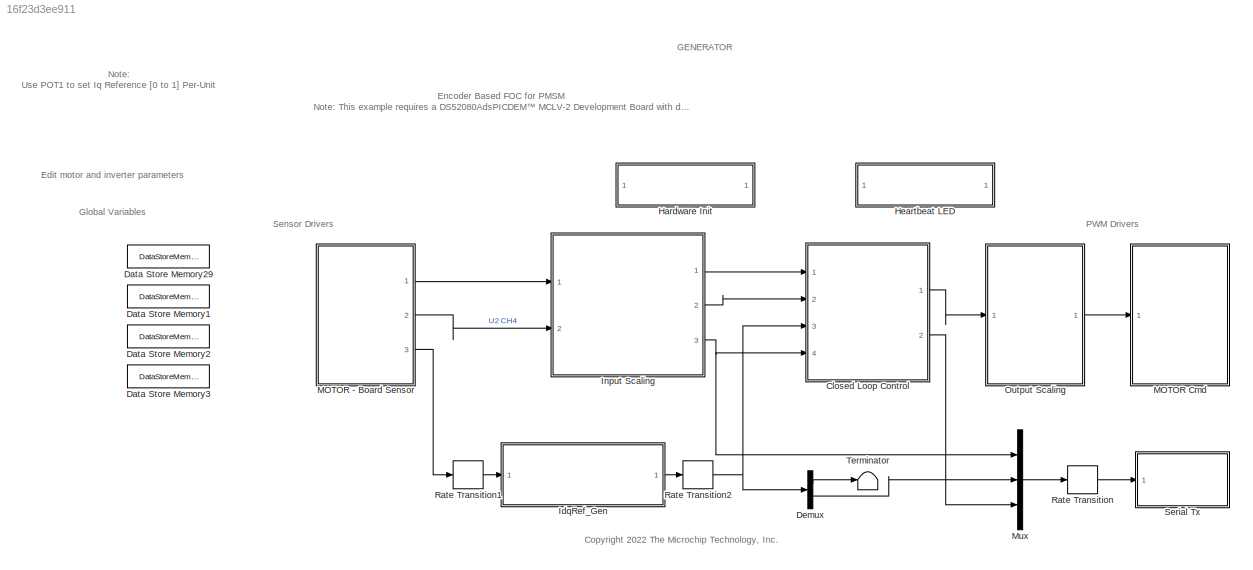
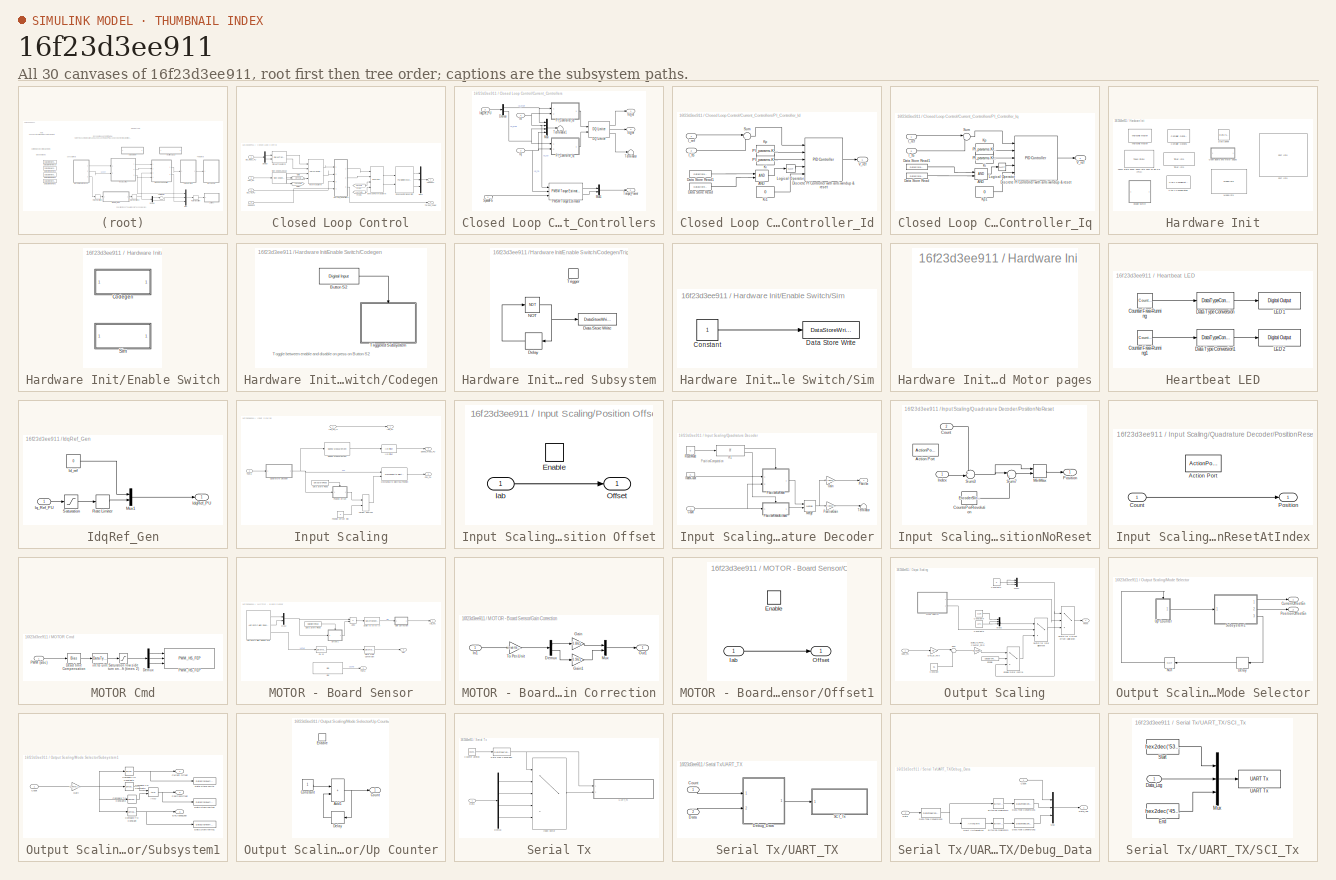
[diagram: thumbnail index - all 30 canvases of the model, root first then tree order]
MODEL slx_16f23d3ee911
KIND model
CONFIG AbsTol = auto
CONFIG EnableMultiTasking = on
CONFIG FixedStep = .00005
CONFIG InitFcn = dsPIC33CK256MP508_MCLV2_Generator_data;
CONFIG MaxStep = auto
CONFIG MinStep = auto
CONFIG PostLoadFcn = dsPIC33CK256MP508_MCLV2_Generator_data;
CONFIG RelTol = 1e-3
CONFIG SampleTimeConstraint = Unconstrained
CONFIG SolverName = FixedStepDiscrete
CONFIG StartTime = 0.0
CONFIG StopTime = 12
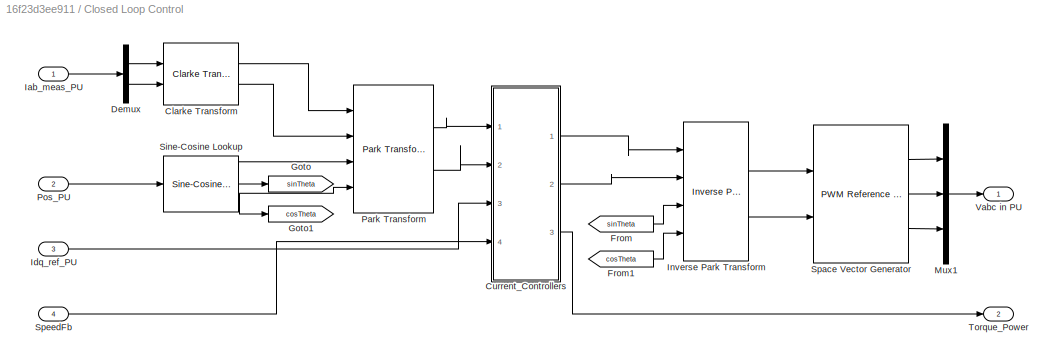
BLOCK [SubSystem] Closed Loop Control
  Ports = [4, 2]
  RequestExecContextInheritance = off
BLOCK [Reference] Closed Loop Control/Clarke Transform  REF=mcbcontrolslib/Clarke Transform
  Ports = [2, 2]
  SourceBlock = mcbcontrolslib/Clarke Transform
  SourceProductBaseCode = MT
  SourceType = Clarke Transform
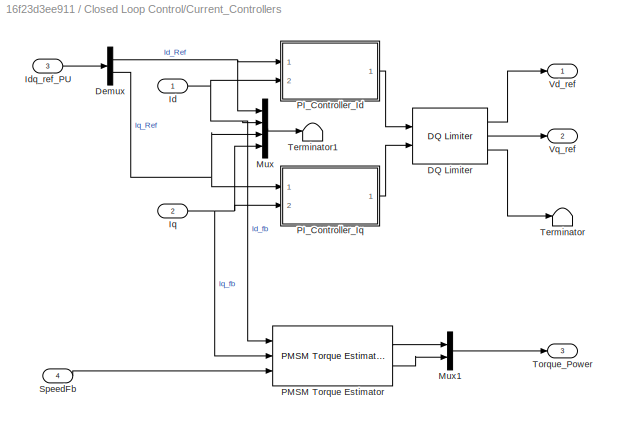
BLOCK [SubSystem] Closed Loop Control/Current_Controllers
  Ports = [4, 3]
  RequestExecContextInheritance = off
BLOCK [Reference] Closed Loop Control/Current_Controllers/DQ Limiter  REF=mcbcontrolslib/DQ Limiter
  Ports = [2, 3]
  SourceBlock = mcbcontrolslib/DQ Limiter
  SourceProductBaseCode = MT
  SourceType = DQ Limiter
BLOCK [Demux] Closed Loop Control/Current_Controllers/Demux
  Outputs = 2
  Ports = [1, 2]
BLOCK [Inport] Closed Loop Control/Current_Controllers/Id
BLOCK [Inport] Closed Loop Control/Current_Controllers/Idq_ref_PU
  Port = 3
BLOCK [Inport] Closed Loop Control/Current_Controllers/Iq
  Port = 2
BLOCK [Mux] Closed Loop Control/Current_Controllers/Mux
  DisplayOption = bar
  Ports = [4, 1]
BLOCK [Mux] Closed Loop Control/Current_Controllers/Mux1
  DisplayOption = bar
  Inputs = 2
  Ports = [2, 1]
BLOCK [SubSystem] Closed Loop Control/Current_Controllers/PI_Controller_Id
  NameLocation = top
  Ports = [2, 1]
  RequestExecContextInheritance = off
BLOCK [Logic] Closed Loop Control/Current_Controllers/PI_Controller_Id/AND
  AllPortsSameDT = off
  IconShape = distinctive
  OutDataTypeStr = boolean
  Ports = [2, 1]
BLOCK [DataStoreRead] Closed Loop Control/Current_Controllers/PI_Controller_Id/Data Store Read
  DataStoreName = Enable
  IndexOptions = Index vector (dialog)
  Indices = 1
  OutputSizes = 1
  Ports = [0, 1]
BLOCK [DataStoreRead] Closed Loop Control/Current_Controllers/PI_Controller_Id/Data Store Read1
  DataStoreName = EnableFOC
  IndexOptions = Index vector (dialog)
  Indices = 1
  OutputSizes = 1
  Ports = [0, 1]
BLOCK [Reference] Closed Loop Control/Current_Controllers/PI_Controller_Id/Discrete PI Controller with anti-windup & reset  REF=slpidlib/PID Controller
  Ports = [5, 1]
  SourceBlock = slpidlib/PID Controller
  SourceProductBaseCode = SL
  SourceType = PID 1dof
BLOCK [Inport] Closed Loop Control/Current_Controllers/PI_Controller_Id/I_fb
  Port = 2
BLOCK [Inport] Closed Loop Control/Current_Controllers/PI_Controller_Id/I_ref
BLOCK [Constant] Closed Loop Control/Current_Controllers/PI_Controller_Id/Ki
  OutDataTypeStr = dataType
  SampleTime = -1
  Value = PI_params.Ki_i*Ts/2
BLOCK [Constant] Closed Loop Control/Current_Controllers/PI_Controller_Id/Ki1
  NameLocation = top
  OutDataTypeStr = dataType
  SampleTime = -1
  Value = 0
BLOCK [Constant] Closed Loop Control/Current_Controllers/PI_Controller_Id/Kp
  NameLocation = top
  OutDataTypeStr = dataType2
  SampleTime = -1
  Value = PI_params.Kp_i/2
BLOCK [Logic] Closed Loop Control/Current_Controllers/PI_Controller_Id/Logical Operator
  AllPortsSameDT = off
  IconShape = distinctive
  Operator = NOT
  OutDataTypeStr = boolean
  Ports = [1, 1]
BLOCK [Sum] Closed Loop Control/Current_Controllers/PI_Controller_Id/Sum
  AccumDataTypeStr = Inherit: Same as first input
  Inputs = |+-
  OutDataTypeStr = Inherit: Same as first input
  Ports = [2, 1]
BLOCK [Outport] Closed Loop Control/Current_Controllers/PI_Controller_Id/V_ref
  VectorParamsAs1DForOutWhenUnconnected = off
BLOCK [SubSystem] Closed Loop Control/Current_Controllers/PI_Controller_Iq
  NameLocation = top
  Ports = [2, 1]
  RequestExecContextInheritance = off
BLOCK [Logic] Closed Loop Control/Current_Controllers/PI_Controller_Iq/AND
  AllPortsSameDT = off
  IconShape = distinctive
  OutDataTypeStr = boolean
  Ports = [2, 1]
BLOCK [DataStoreRead] Closed Loop Control/Current_Controllers/PI_Controller_Iq/Data Store Read
  DataStoreName = Enable
  IndexOptions = Index vector (dialog)
  Indices = 1
  OutputSizes = 1
  Ports = [0, 1]
BLOCK [DataStoreRead] Closed Loop Control/Current_Controllers/PI_Controller_Iq/Data Store Read1
  DataStoreName = EnableFOC
  IndexOptions = Index vector (dialog)
  Indices = 1
  OutputSizes = 1
  Ports = [0, 1]
BLOCK [Reference] Closed Loop Control/Current_Controllers/PI_Controller_Iq/Discrete PI Controller with anti-windup & reset  REF=slpidlib/PID Controller
  Ports = [5, 1]
  SourceBlock = slpidlib/PID Controller
  SourceProductBaseCode = SL
  SourceType = PID 1dof
BLOCK [Inport] Closed Loop Control/Current_Controllers/PI_Controller_Iq/I_fb
  Port = 2
BLOCK [Inport] Closed Loop Control/Current_Controllers/PI_Controller_Iq/I_ref
BLOCK [Constant] Closed Loop Control/Current_Controllers/PI_Controller_Iq/Ki
  OutDataTypeStr = dataType
  SampleTime = -1
  Value = PI_params.Ki_i*Ts/2
BLOCK [Constant] Closed Loop Control/Current_Controllers/PI_Controller_Iq/Kp
  NameLocation = top
  OutDataTypeStr = dataType2
  SampleTime = -1
  Value = PI_params.Kp_i/2
BLOCK [Constant] Closed Loop Control/Current_Controllers/PI_Controller_Iq/Kp1
  NameLocation = top
  OutDataTypeStr = dataType
  SampleTime = -1
  Value = 0
BLOCK [Logic] Closed Loop Control/Current_Controllers/PI_Controller_Iq/Logical Operator
  AllPortsSameDT = off
  IconShape = distinctive
  Operator = NOT
  OutDataTypeStr = boolean
  Ports = [1, 1]
BLOCK [Sum] Closed Loop Control/Current_Controllers/PI_Controller_Iq/Sum
  AccumDataTypeStr = Inherit: Same as first input
  Inputs = |+-
  OutDataTypeStr = Inherit: Same as first input
  Ports = [2, 1]
BLOCK [Outport] Closed Loop Control/Current_Controllers/PI_Controller_Iq/V_ref
  VectorParamsAs1DForOutWhenUnconnected = off
BLOCK [Reference] Closed Loop Control/Current_Controllers/PMSM Torque Estimator  REF=mcbcontrolslib/PMSM Torque Estimator
  Ports = [3, 2]
  SourceBlock = mcbcontrolslib/PMSM Torque Estimator
  SourceProductBaseCode = MT
  SourceType = PMSM Torque Estimator
BLOCK [Inport] Closed Loop Control/Current_Controllers/SpeedFb
  Port = 4
BLOCK [Terminator] Closed Loop Control/Current_Controllers/Terminator
BLOCK [Terminator] Closed Loop Control/Current_Controllers/Terminator1
BLOCK [Outport] Closed Loop Control/Current_Controllers/Torque_Power
  Port = 3
  VectorParamsAs1DForOutWhenUnconnected = off
BLOCK [Outport] Closed Loop Control/Current_Controllers/Vd_ref
  VectorParamsAs1DForOutWhenUnconnected = off
BLOCK [Outport] Closed Loop Control/Current_Controllers/Vq_ref
  Port = 2
  VectorParamsAs1DForOutWhenUnconnected = off
BLOCK [Demux] Closed Loop Control/Demux
  Outputs = 2
  Ports = [1, 2]
BLOCK [From] Closed Loop Control/From
  GotoTag = sinTheta
BLOCK [From] Closed Loop Control/From1
  GotoTag = cosTheta
BLOCK [Goto] Closed Loop Control/Goto
  GotoTag = sinTheta
BLOCK [Goto] Closed Loop Control/Goto1
  GotoTag = cosTheta
BLOCK [Inport] Closed Loop Control/Iab_meas_PU
BLOCK [Inport] Closed Loop Control/Idq_ref_PU
  Port = 3
BLOCK [Reference] Closed Loop Control/Inverse Park Transform  REF=mcbcontrolslib/Inverse Park Transform
  Ports = [4, 2]
  SourceBlock = mcbcontrolslib/Inverse Park Transform
  SourceProductBaseCode = MT
  SourceType = Inverse Park Transform
BLOCK [Mux] Closed Loop Control/Mux1
  DisplayOption = bar
  Inputs = 3
  Ports = [3, 1]
BLOCK [Reference] Closed Loop Control/Park Transform  REF=mcbcontrolslib/Park Transform
  Ports = [4, 2]
  SourceBlock = mcbcontrolslib/Park Transform
  SourceProductBaseCode = MT
  SourceType = Park Transform
BLOCK [Inport] Closed Loop Control/Pos_PU
  Port = 2
BLOCK [Reference] Closed Loop Control/Sine-Cosine Lookup  REF=mcbcontrolslib/Sine-Cosine Lookup
  Ports = [1, 2]
  SourceBlock = mcbcontrolslib/Sine-Cosine Lookup
  SourceProductBaseCode = MT
  SourceType = Sine-Cosine Lookup
BLOCK [Reference] Closed Loop Control/Space Vector Generator  REF=mcbcontrolslib/PWM Reference Generator
  Ports = [2, 3]
  SourceBlock = mcbcontrolslib/PWM Reference Generator
  SourceProductBaseCode = MT
  SourceType = PWM Modulation
BLOCK [Inport] Closed Loop Control/SpeedFb
  Port = 4
BLOCK [Outport] Closed Loop Control/Torque_Power
  Port = 2
  VectorParamsAs1DForOutWhenUnconnected = off
BLOCK [Outport] Closed Loop Control/Vabc in PU
  VectorParamsAs1DForOutWhenUnconnected = off
BLOCK [DataStoreMemory] Data Store Memory1
  DataStoreName = EnCurOffset
  OutDataTypeStr = boolean
  ShowAdditionalParam = off
BLOCK [DataStoreMemory] Data Store Memory2
  DataStoreName = EnPosOffset
  OutDataTypeStr = boolean
  ShowAdditionalParam = off
BLOCK [DataStoreMemory] Data Store Memory29
  DataStoreName = EnableFOC
  OutDataTypeStr = boolean
  ShowAdditionalParam = off
BLOCK [DataStoreMemory] Data Store Memory3
  DataStoreName = Enable
  OutDataTypeStr = boolean
  ShowAdditionalParam = off
BLOCK [Demux] Demux
  Outputs = 2
  Ports = [1, 2]
BLOCK [SubSystem] Hardware Init
  Ports = []
  RequestExecContextInheritance = off
BLOCK [Reference] Hardware Init/Compiler Options  REF=MCHP_Blockset/System Configuration/Compiler Options
  Ports = []
  Priority = 1
  SourceBlock = MCHP_Blockset/System Configuration/Compiler Options
  SourceProductName = MPLAB Device Blocks for Simulink
BLOCK [Reference] Hardware Init/Data Sheet  REF=MCHP_Blockset/System Info/Data Sheet
  AttributesFormatString = %<cpy_MCHP_Id>
  Ports = []
  SourceBlock = MCHP_Blockset/System Info/Data Sheet
  SourceProductName = MPLAB Device Blocks for Simulink
BLOCK [SubSystem] Hardware Init/Enable Switch
  Ports = []
  RequestExecContextInheritance = off
  Variant = on
  VariantControlMode = sim codegen switching
BLOCK [SubSystem] Hardware Init/Enable Switch/Codegen
  Ports = []
  RequestExecContextInheritance = off
  VariantControl = (codegen)
BLOCK [Reference] Hardware Init/Enable Switch/Codegen/Button S2  REF=MCHP_Blockset/Digital IO/Digital Input
  Ports = [0, 1]
  SourceBlock = MCHP_Blockset/Digital IO/Digital Input
  SourceProductName = MPLAB Device Blocks for Simulink
  SourceType = Input driver for Digital Input Pins
BLOCK [SubSystem] Hardware Init/Enable Switch/Codegen/Triggered Subsystem
  Ports = [0, 0, 0, 1]
  RequestExecContextInheritance = off
  TreatAsAtomicUnit = on
BLOCK [DataStoreWrite] Hardware Init/Enable Switch/Codegen/Triggered Subsystem/Data Store Write
  DataStoreName = Enable
  IndexOptions = Index vector (dialog)
  Indices = 1
  OutputSizes = 1
  Ports = [1]
BLOCK [Delay] Hardware Init/Enable Switch/Codegen/Triggered Subsystem/Delay
  DelayLength = 1
  InitialCondition = 0
  InputPortMap = u0
  Ports = [1, 1]
BLOCK [Logic] Hardware Init/Enable Switch/Codegen/Triggered Subsystem/NOT
  AllPortsSameDT = off
  IconShape = distinctive
  Operator = NOT
  OutDataTypeStr = boolean
  Ports = [1, 1]
BLOCK [TriggerPort] Hardware Init/Enable Switch/Codegen/Triggered Subsystem/Trigger
  Ports = []
  StatesWhenEnabling = held
  TriggerType = falling
  VariantControl = Variant
BLOCK [SubSystem] Hardware Init/Enable Switch/Sim
  Ports = []
  RequestExecContextInheritance = off
  VariantControl = (sim)
BLOCK [Constant] Hardware Init/Enable Switch/Sim/Constant
  OutDataTypeStr = Inherit: Inherit via back propagation
BLOCK [DataStoreWrite] Hardware Init/Enable Switch/Sim/Data Store Write
  DataStoreName = Enable
  IndexOptions = Index vector (dialog)
  Indices = 1
  OutputSizes = 1
  Ports = [1]
BLOCK [Reference] Hardware Init/Microchip Master  REF=MCHP_Blockset/System Configuration/Microchip Master
  Ports = []
  Priority = 1
  SourceBlock = MCHP_Blockset/System Configuration/Microchip Master
  SourceProductName = MPLAB Device Blocks for Simulink
BLOCK [Reference] Hardware Init/Model Info  REF=simulink/Model-Wide
Utilities/Model Info
  Ports = []
  SourceBlock = simulink/Model-Wide\nUtilities/Model Info
  SourceProductBaseCode = SL
  SourceType = CMBlock
BLOCK [SubSystem] Hardware Init/Open Board and Motor pages
  OpenFcn = web('www.microchip.com/DevelopmentTools/ProductDetails.aspx?PartNO=DM330021-2','-browser');\npause(1);\nweb('http://www.microchipdirect.com/productsearch.aspx?keywords=AC300020','-browser');\npause(1);\nweb('www.microchipdirect.com/ProductSearch.aspx?keywords=AC300022','-browser');
  Ports = []
  RequestExecContextInheritance = off
BLOCK [Reference] Hardware Init/Port Info  REF=MCHP_Blockset/System Info/Port Info
  Ports = []
  SourceBlock = MCHP_Blockset/System Info/Port Info
  SourceProductName = MPLAB Device Blocks for Simulink
BLOCK [Reference] Hardware Init/Tasks State Show base rate Task on pin D8 (PIM)  REF=MCHP_Blockset/Profiling/Tasks State
  Ports = []
  SourceBlock = MCHP_Blockset/Profiling/Tasks State
  SourceProductName = MPLAB Device Blocks for Simulink
  SourceType = MCU Over-Load (Profile execution time)
BLOCK [Reference] Hardware Init/Timer Info  REF=MCHP_Blockset/System Info/Timer Info
  Ports = []
  SourceBlock = MCHP_Blockset/System Info/Timer Info
  SourceProductName = MPLAB Device Blocks for Simulink
BLOCK [Reference] Hardware Init/UART Configuration  REF=MCHP_Blockset/BUS UART/UART Configuration
  Ports = []
  SourceBlock = MCHP_Blockset/BUS UART/UART Configuration
  SourceProductName = MPLAB Device Blocks for Simulink
  SourceType = Configuration for UART peripheral
BLOCK [SubSystem] Heartbeat LED
  Ports = []
  RequestExecContextInheritance = off
BLOCK [Reference] Heartbeat LED/Counter Free-Running  REF=simulink/Sources/Counter
Free-Running
  Ports = [0, 1]
  SourceBlock = simulink/Sources/Counter\nFree-Running
  SourceProductBaseCode = SL
  SourceType = Counter Free-Running
BLOCK [Reference] Heartbeat LED/Counter Free-Running1  REF=simulink/Sources/Counter
Free-Running
  Ports = [0, 1]
  SourceBlock = simulink/Sources/Counter\nFree-Running
  SourceProductBaseCode = SL
  SourceType = Counter Free-Running
BLOCK [DataTypeConversion] Heartbeat LED/Data Type Conversion
  OutDataTypeStr = boolean
  RndMeth = Floor
  SaturateOnIntegerOverflow = off
BLOCK [DataTypeConversion] Heartbeat LED/Data Type Conversion1
  OutDataTypeStr = boolean
  RndMeth = Floor
  SaturateOnIntegerOverflow = off
BLOCK [Reference] Heartbeat LED/LED 1  REF=MCHP_Blockset/Digital IO/Digital Output
  Ports = [1]
  SourceBlock = MCHP_Blockset/Digital IO/Digital Output
  SourceProductName = MPLAB Device Blocks for Simulink
BLOCK [Reference] Heartbeat LED/LED 2  REF=MCHP_Blockset/Digital IO/Digital Output
  Ports = [1]
  SourceBlock = MCHP_Blockset/Digital IO/Digital Output
  SourceProductName = MPLAB Device Blocks for Simulink
BLOCK [SubSystem] IdqRef_Gen
  Ports = [1, 1]
  RequestExecContextInheritance = off
BLOCK [Constant] IdqRef_Gen/Id_ref
  OutDataTypeStr = dataType
  SampleTime = Ts_speed
  Value = 0
BLOCK [Outport] IdqRef_Gen/IdqRef_PU
  VectorParamsAs1DForOutWhenUnconnected = off
BLOCK [Inport] IdqRef_Gen/Iq_Ref_PU
BLOCK [Mux] IdqRef_Gen/Mux1
  DisplayOption = bar
  Inputs = 2
  Ports = [2, 1]
BLOCK [RateLimiter] IdqRef_Gen/Rate Limiter
  FallingSlewLimit = -0.1
  RisingSlewLimit = 0.1
  SampleTimeMode = inherited
BLOCK [Saturate] IdqRef_Gen/Saturation
BLOCK [SubSystem] Input Scaling
  Ports = [2, 3]
  RequestExecContextInheritance = off
BLOCK [DataStoreRead] Input Scaling/Data Store Read
  DataStoreName = EnPosOffset
  IndexOptions = Index vector (dialog)
  Indices = 1
  OutputSizes = 1
  Ports = [0, 1]
BLOCK [Reference] Input Scaling/IIR Filter  REF=mcbcontrolslib/IIR Filter
  Ports = [1, 1]
  SourceBlock = mcbcontrolslib/IIR Filter
  SourceProductBaseCode = MT
  SourceType = IIR Filter
BLOCK [Outport] Input Scaling/Iab_PU
BLOCK [Inport] Input Scaling/Iab_PU_In
BLOCK [Reference] Input Scaling/Mechanical to Electrical Position  REF=mcbpositiondecoderlib/Mechanical to Electrical Position
  Ports = [2, 1]
  SourceBlock = mcbpositiondecoderlib/Mechanical to Electrical Position
  SourceProductBaseCode = MT
  SourceType = Mechanical to Electrical Position
BLOCK [Outport] Input Scaling/Pos_PU
  Port = 2
BLOCK [SubSystem] Input Scaling/Position Offset
  Ports = [1, 1, 1]
  RequestExecContextInheritance = off
BLOCK [Constant] Input Scaling/Position Offset Sim
  OutDataTypeStr = Inherit: Inherit via back propagation
  Value = 0
BLOCK [EnablePort] Input Scaling/Position Offset/Enable
  Ports = []
BLOCK [Inport] Input Scaling/Position Offset/Iab
BLOCK [Outport] Input Scaling/Position Offset/Offset
BLOCK [SubSystem] Input Scaling/Quadrature Decoder
  Ports = [1, 1]
  RequestExecContextInheritance = off
BLOCK [Inport] Input Scaling/Quadrature Decoder/Count
  OutDataTypeStr = uint16
BLOCK [Gain] Input Scaling/Quadrature Decoder/Gain
  Gain = 1/(EncoderSlitsPerRevolution*1)
  OutDataTypeStr = PositionDataType
  ParamDataTypeStr = fixdt(0,16)
  RndMeth = Simplest
BLOCK [If] Input Scaling/Quadrature Decoder/If1
  Ports = [1, 2]
BLOCK [Constant] Input Scaling/Quadrature Decoder/IndexCount
  OutDataTypeStr = uint16
  Value = 0
BLOCK [Merge] Input Scaling/Quadrature Decoder/Merge
  Ports = [2, 1]
BLOCK [Outport] Input Scaling/Quadrature Decoder/Position
  VectorParamsAs1DForOutWhenUnconnected = off
BLOCK [Gain] Input Scaling/Quadrature Decoder/PositionGain
  Gain = 1/(EncoderSlitsPerRevolution*1)
  OutDataTypeStr = PositionDataType
  ParamDataTypeStr = fixdt(0,16)
  RndMeth = Simplest
BLOCK [SubSystem] Input Scaling/Quadrature Decoder/PositionNoReset
  Ports = [2, 1, 0, 0, 0, 0, 0, 1]
  RequestExecContextInheritance = off
BLOCK [ActionPort] Input Scaling/Quadrature Decoder/PositionNoReset/Action Port
  ActionPortLabel = if(u1 > 0)
BLOCK [Inport] Input Scaling/Quadrature Decoder/PositionNoReset/Count
  Port = 2
BLOCK [Constant] Input Scaling/Quadrature Decoder/PositionNoReset/CountsPerRevolution
  OutDataTypeStr = Inherit: Inherit via back propagation
  Value = EncoderSlitsPerRevolution*1
BLOCK [Inport] Input Scaling/Quadrature Decoder/PositionNoReset/Index
BLOCK [MinMax] Input Scaling/Quadrature Decoder/PositionNoReset/MinMax
  Inputs = 2
  Ports = [2, 1]
  RndMeth = Simplest
  ZeroCross = off
BLOCK [Outport] Input Scaling/Quadrature Decoder/PositionNoReset/Position
  VectorParamsAs1DForOutWhenUnconnected = off
BLOCK [Sum] Input Scaling/Quadrature Decoder/PositionNoReset/Sum3
  AccumDataTypeStr = Inherit: Same as first input
  Inputs = +-|
  OutDataTypeStr = Inherit: Same as accumulator
  Ports = [2, 1]
  RndMeth = Simplest
BLOCK [Sum] Input Scaling/Quadrature Decoder/PositionNoReset/Sum7
  AccumDataTypeStr = Inherit: Same as first input
  Inputs = |++
  OutDataTypeStr = Inherit: Same as accumulator
  Ports = [2, 1]
  RndMeth = Simplest
BLOCK [SubSystem] Input Scaling/Quadrature Decoder/PositionResetAtIndex
  Ports = [1, 1, 0, 0, 0, 0, 0, 1]
  RequestExecContextInheritance = off
  TreatAsAtomicUnit = on
BLOCK [ActionPort] Input Scaling/Quadrature Decoder/PositionResetAtIndex/Action Port
  ActionPortLabel = else
BLOCK [Inport] Input Scaling/Quadrature Decoder/PositionResetAtIndex/Count
BLOCK [Outport] Input Scaling/Quadrature Decoder/PositionResetAtIndex/Position
  VectorParamsAs1DForOutWhenUnconnected = off
BLOCK [Constant] Input Scaling/Quadrature Decoder/ResetMode
  OutDataTypeStr = int16
  Value = 0
BLOCK [Terminator] Input Scaling/Quadrature Decoder/Terminator
BLOCK [Reference] Input Scaling/Speed Measurement  REF=mcbpositiondecoderlib/Speed Measurement
  Ports = [1, 1]
  SourceBlock = mcbpositiondecoderlib/Speed Measurement
  SourceProductBaseCode = MT
  SourceType = Speed Measurement
BLOCK [Outport] Input Scaling/Speed_meas_PU
  Port = 3
BLOCK [Inport] Input Scaling/Theta
  Port = 2
BLOCK [VariantSource] Input Scaling/Variant Source2
  Ports = [2, 1]
BLOCK [SubSystem] MOTOR - Board Sensor
  Ports = [0, 3]
  RequestExecContextInheritance = off
BLOCK [Reference] MOTOR - Board Sensor/ADC dsPIC High Speed SAR  REF=MCHP_Blockset/Analog IO/ADC dsPIC
High Speed SAR
  Ports = [0, 3]
  SourceBlock = MCHP_Blockset/Analog IO/ADC dsPIC\nHigh Speed SAR
  SourceProductName = MPLAB Device Blocks for Simulink
  SourceType = ADC SAR for dsPIC EP GS family
  UserDataPersistent = on
BLOCK [Sum] MOTOR - Board Sensor/Add2
  IconShape = rectangular
  Inputs = +-
  OutDataTypeStr = int16
  Ports = [2, 1]
  RndMeth = Simplest
BLOCK [DataStoreRead] MOTOR - Board Sensor/Data Store Read
  DataStoreName = EnCurOffset
  IndexOptions = Index vector (dialog)
  Indices = 1
  OutputSizes = 1
  Ports = [0, 1]
BLOCK [DataTypeConversion] MOTOR - Board Sensor/Data Type Conversion
  OutDataTypeStr = dataType
  RndMeth = Simplest
  SaturateOnIntegerOverflow = off
BLOCK [SubSystem] MOTOR - Board Sensor/Gain Correction
  Ports = [1, 1]
  RequestExecContextInheritance = off
BLOCK [Demux] MOTOR - Board Sensor/Gain Correction/Demux
  Outputs = 2
  Ports = [1, 2]
BLOCK [Gain] MOTOR - Board Sensor/Gain Correction/Gain
  Gain = 0.865
  OutDataTypeStr = Inherit: Same as input
  RndMeth = Zero
BLOCK [Gain] MOTOR - Board Sensor/Gain Correction/Gain1
  Gain = 0.961
  OutDataTypeStr = Inherit: Same as input
  RndMeth = Zero
BLOCK [Inport] MOTOR - Board Sensor/Gain Correction/In1
BLOCK [Mux] MOTOR - Board Sensor/Gain Correction/Mux
  DisplayOption = bar
  Inputs = 2
  Ports = [2, 1]
BLOCK [Outport] MOTOR - Board Sensor/Gain Correction/Out1
BLOCK [Gain] MOTOR - Board Sensor/Gain Correction/To Per-Unit
  Gain = inverter.invertingAmp/PU_System.I_base
  OutDataTypeStr = fixdt(1,16)
  OutMax = 1
  OutMin = -1
  RndMeth = Zero
BLOCK [Outport] MOTOR - Board Sensor/Iab_PU
  VectorParamsAs1DForOutWhenUnconnected = off
BLOCK [Mux] MOTOR - Board Sensor/Mux2
  DisplayOption = bar
  Inputs = 2
  Ports = [2, 1]
BLOCK [SubSystem] MOTOR - Board Sensor/Offset1
  Ports = [1, 1, 1]
  RequestExecContextInheritance = off
BLOCK [EnablePort] MOTOR - Board Sensor/Offset1/Enable
  Ports = []
BLOCK [Inport] MOTOR - Board Sensor/Offset1/Iab
BLOCK [Outport] MOTOR - Board Sensor/Offset1/Offset
BLOCK [Outport] MOTOR - Board Sensor/Pot
  Port = 3
  VectorParamsAs1DForOutWhenUnconnected = off
BLOCK [DataTypeConversion] MOTOR - Board Sensor/Q1.15
  ConvertRealWorld = Stored Integer (SI)
  OutDataTypeStr = fixdt(0,16,16)
  RndMeth = Floor
  SaturateOnIntegerOverflow = off
BLOCK [Reference] MOTOR - Board Sensor/QEI  REF=MCHP_Blockset/QEI/QEI
  Ports = [0, 1]
  SourceBlock = MCHP_Blockset/QEI/QEI
  SourceProductName = MPLAB Device Blocks for Simulink
  SourceType = Output Driver for Quadrature Encoder Interface (QEI) peripheral
  UserDataPersistent = on
BLOCK [DataTypeConversion] MOTOR - Board Sensor/Scale Ia Ib to (A)
  ConvertRealWorld = Stored Integer (SI)
  OutDataTypeStr = fixdt(1,16, 1.65/32768 / (.005 * 75),0)
  RndMeth = Floor
  SaturateOnIntegerOverflow = off
BLOCK [Outport] MOTOR - Board Sensor/Theta
  Port = 2
  VectorParamsAs1DForOutWhenUnconnected = off
BLOCK [SubSystem] MOTOR Cmd
  Ports = [1]
  RequestExecContextInheritance = off
BLOCK [Bias] MOTOR Cmd/Dead time Compensation
  Bias = round( (2e-6/5e-5) *PWM1max )
  SaturateOnIntegerOverflow = off
BLOCK [Demux] MOTOR Cmd/Demux
  Outputs = 3
  Ports = [1, 3]
BLOCK [Inport] MOTOR Cmd/PWM (abc)
BLOCK [Reference] MOTOR Cmd/PWM_HS_FEP  REF=MCHP_Blockset/PWM IO/PWM_HS_FEP
  Ports = [3]
  Priority = -2000
  SourceBlock = MCHP_Blockset/PWM IO/PWM_HS_FEP
  SourceProductName = MPLAB Device Blocks for Simulink
  SourceType = PWM High-Speed Fine-Edge-Placement
  UserDataPersistent = on
BLOCK [Saturate] MOTOR Cmd/Saturation low side turn on errate workaround + errata for Phase shift (times 2)
  LowerLimit = round( (2e-6/5e-5) *PWM1max )* 2
  UpperLimit = PWM1max
BLOCK [DataTypeConversion] MOTOR Cmd/int to uint
  ConvertRealWorld = Stored Integer (SI)
  OutDataTypeStr = uint16
  RndMeth = Floor
  SaturateOnIntegerOverflow = off
BLOCK [Mux] Mux
  DisplayOption = bar
  Inputs = 3
  Ports = [3, 1]
BLOCK [SubSystem] Output Scaling
  Ports = [1, 1]
  RequestExecContextInheritance = off
BLOCK [Constant] Output Scaling/Constant
  OutDataTypeStr = dataType
  SampleTime = -1
  Value = 0.5
BLOCK [Constant] Output Scaling/Constant2
  OutDataTypeStr = Inherit: Inherit via back propagation
  Value = 0
BLOCK [Constant] Output Scaling/Constant3
  OutDataTypeStr = Inherit: Inherit via back propagation
  Value = 1371
BLOCK [Constant] Output Scaling/Constant4
  OutDataTypeStr = Inherit: Inherit via back propagation
  Value = 2128
BLOCK [DataStoreRead] Output Scaling/Enable
  DataStoreName = Enable
  IndexOptions = Index vector (dialog)
  Indices = 1
  OutputSizes = 1
  Ports = [0, 1]
BLOCK [Switch] Output Scaling/Enable motor control
  Criteria = u2 ~= 0
  InputSameDT = off
  SaturateOnIntegerOverflow = off
  Threshold = 250
BLOCK [SubSystem] Output Scaling/Mode Selector
  Ports = [0, 2]
  RequestExecContextInheritance = off
BLOCK [Outport] Output Scaling/Mode Selector/CurrentOffsetEn
BLOCK [Delay] Output Scaling/Mode Selector/Delay
  DelayLength = 1
  InputPortMap = u0
  Ports = [1, 1]
BLOCK [Logic] Output Scaling/Mode Selector/NOT
  AllPortsSameDT = off
  IconShape = distinctive
  Operator = NOT
  OutDataTypeStr = boolean
  Ports = [1, 1]
BLOCK [Outport] Output Scaling/Mode Selector/PositionOffsetEn
  Port = 2
BLOCK [SubSystem] Output Scaling/Mode Selector/Subsystem1
  Ports = [1, 3]
  RequestExecContextInheritance = off
BLOCK [Logic] Output Scaling/Mode Selector/Subsystem1/AND
  AllPortsSameDT = off
  IconShape = distinctive
  OutDataTypeStr = boolean
  Ports = [2, 1]
BLOCK [Reference] Output Scaling/Mode Selector/Subsystem1/Compare To Constant  REF=simulink/Logic and Bit
Operations/Compare
To Constant
  Ports = [1, 1]
  SourceBlock = simulink/Logic and Bit\nOperations/Compare\nTo Constant
  SourceProductBaseCode = SL
  SourceType = Compare To Constant
BLOCK [Reference] Output Scaling/Mode Selector/Subsystem1/Compare To Constant1  REF=simulink/Logic and Bit
Operations/Compare
To Constant
  Ports = [1, 1]
  SourceBlock = simulink/Logic and Bit\nOperations/Compare\nTo Constant
  SourceProductBaseCode = SL
  SourceType = Compare To Constant
BLOCK [Reference] Output Scaling/Mode Selector/Subsystem1/Compare To Constant2  REF=simulink/Logic and Bit
Operations/Compare
To Constant
  Ports = [1, 1]
  SourceBlock = simulink/Logic and Bit\nOperations/Compare\nTo Constant
  SourceProductBaseCode = SL
  SourceType = Compare To Constant
BLOCK [Reference] Output Scaling/Mode Selector/Subsystem1/Compare To Constant3  REF=simulink/Logic and Bit
Operations/Compare
To Constant
  Ports = [1, 1]
  SourceBlock = simulink/Logic and Bit\nOperations/Compare\nTo Constant
  SourceProductBaseCode = SL
  SourceType = Compare To Constant
BLOCK [Inport] Output Scaling/Mode Selector/Subsystem1/Count
BLOCK [Outport] Output Scaling/Mode Selector/Subsystem1/Current Offset
BLOCK [DataStoreWrite] Output Scaling/Mode Selector/Subsystem1/Data Store Write
  DataStoreName = EnCurOffset
  IndexOptions = Index vector (dialog)
  Indices = 1
  OutputSizes = 1
  Ports = [1]
BLOCK [DataStoreWrite] Output Scaling/Mode Selector/Subsystem1/Data Store Write1
  DataStoreName = EnableFOC
  IndexOptions = Index vector (dialog)
  Indices = 1
  OutputSizes = 1
  Ports = [1]
BLOCK [DataStoreWrite] Output Scaling/Mode Selector/Subsystem1/Data Store Write2
  DataStoreName = EnPosOffset
  IndexOptions = Index vector (dialog)
  Indices = 1
  OutputSizes = 1
  Ports = [1]
BLOCK [Outport] Output Scaling/Mode Selector/Subsystem1/EnClosedLoop
  Port = 3
BLOCK [Gain] Output Scaling/Mode Selector/Subsystem1/Gain
  Gain = 1/PWM_frequency
  OutDataTypeStr = dataType2
  RndMeth = Simplest
BLOCK [Outport] Output Scaling/Mode Selector/Subsystem1/PositionOffset
  Port = 2
BLOCK [SubSystem] Output Scaling/Mode Selector/Up Counter
  Ports = [0, 1, 1]
  RequestExecContextInheritance = off
BLOCK [Sum] Output Scaling/Mode Selector/Up Counter/Add1
  IconShape = rectangular
  Ports = [2, 1]
  SaturateOnIntegerOverflow = on
BLOCK [Constant] Output Scaling/Mode Selector/Up Counter/Constant
  OutDataTypeStr = uint32
BLOCK [Outport] Output Scaling/Mode Selector/Up Counter/Count
  InitialOutput = 0
BLOCK [Delay] Output Scaling/Mode Selector/Up Counter/Delay
  DelayLength = 1
  InputPortMap = u0
  Ports = [1, 1]
BLOCK [EnablePort] Output Scaling/Mode Selector/Up Counter/Enable
  Ports = []
  StatesWhenEnabling = reset
BLOCK [Mux] Output Scaling/Mux1
  DisplayOption = bar
  Inputs = 3
  Ports = [3, 1]
BLOCK [Mux] Output Scaling/Mux2
  DisplayOption = bar
  Inputs = 3
  Ports = [3, 1]
BLOCK [Gain] Output Scaling/One_by_Two
  Gain = 0.5
  OutDataTypeStr = Inherit: Same as input
  RndMeth = Simplest
BLOCK [Outport] Output Scaling/PWM
BLOCK [Gain] Output Scaling/Scale_to_PWM_Counter_PRD
  Gain = PWM1max + 1
  OutDataTypeStr = uint16
  RndMeth = Simplest
BLOCK [Sum] Output Scaling/Sum
  AccumDataTypeStr = Inherit: Same as first input
  Inputs = |++
  Ports = [2, 1]
BLOCK [Switch] Output Scaling/Switch for Current offset calibration
  Criteria = u2 ~= 0
  InputSameDT = off
  SaturateOnIntegerOverflow = off
  Threshold = 250
BLOCK [Switch] Output Scaling/Switch for rotor alignment
  Criteria = u2 ~= 0
  InputSameDT = off
  SaturateOnIntegerOverflow = off
  Threshold = 250
BLOCK [Inport] Output Scaling/Vabc_PU
BLOCK [RateTransition] Rate Transition
  Deterministic = off
  Integrity = off
  OutPortSampleTime = 0.1
BLOCK [RateTransition] Rate Transition1
  Deterministic = off
  Integrity = off
  OutPortSampleTime = Ts_speed
BLOCK [RateTransition] Rate Transition2
  Deterministic = off
  Integrity = off
  OutPortSampleTime = Ts
BLOCK [SubSystem] Serial Tx
  Ports = [1]
  RequestExecContextInheritance = off
BLOCK [Reference] Serial Tx/Counter Limited  REF=simulink/Sources/Counter
Limited
  Ports = [0, 1]
  SourceBlock = simulink/Sources/Counter\nLimited
  SourceProductBaseCode = SL
  SourceType = Counter Limited
BLOCK [Inport] Serial Tx/Data
BLOCK [DataTypeConversion] Serial Tx/Data Type Conversion
  OutDataTypeStr = uint8
  RndMeth = Simplest
  SaturateOnIntegerOverflow = off
BLOCK [Demux] Serial Tx/Demux
  Ports = [1, 4]
BLOCK [MultiPortSwitch] Serial Tx/Index Vector
  DataPortOrder = Zero-based contiguous
  InputSameDT = off
  Inputs = 4
  OutDataTypeStr = Inherit: Same as first data input
  Ports = [5, 1]
  RndMeth = Simplest
  SaturateOnIntegerOverflow = off
  zeroidx = on
BLOCK [SubSystem] Serial Tx/UART_TX
  Ports = [2]
  RequestExecContextInheritance = off
BLOCK [Inport] Serial Tx/UART_TX/Count
BLOCK [Inport] Serial Tx/UART_TX/Data
  Port = 2
BLOCK [SubSystem] Serial Tx/UART_TX/Debug_Data
  Ports = [2, 1]
  RequestExecContextInheritance = off
BLOCK [Reference] Serial Tx/UART_TX/Debug_Data/Bitwise Operator2  REF=simulink/Logic and Bit
Operations/Bitwise
Operator
  Ports = [1, 1]
  SourceBlock = simulink/Logic and Bit\nOperations/Bitwise\nOperator
  SourceProductBaseCode = SL
  SourceType = Bitwise Operator
BLOCK [Reference] Serial Tx/UART_TX/Debug_Data/Bitwise Operator3  REF=simulink/Logic and Bit
Operations/Bitwise
Operator
  Ports = [1, 1]
  SourceBlock = simulink/Logic and Bit\nOperations/Bitwise\nOperator
  SourceProductBaseCode = SL
  SourceType = Bitwise Operator
BLOCK [Inport] Serial Tx/UART_TX/Debug_Data/Count
BLOCK [Inport] Serial Tx/UART_TX/Debug_Data/Data
  Port = 2
BLOCK [DataTypeConversion] Serial Tx/UART_TX/Debug_Data/Data Type Conversion1
  OutDataTypeStr = uint8
  RndMeth = Simplest
  SaturateOnIntegerOverflow = off
BLOCK [DataTypeConversion] Serial Tx/UART_TX/Debug_Data/Data Type Conversion2
  OutDataTypeStr = uint8
  RndMeth = Simplest
  SaturateOnIntegerOverflow = off
BLOCK [DataTypeConversion] Serial Tx/UART_TX/Debug_Data/Data Type Conversion3
  ConvertRealWorld = Stored Integer (SI)
  OutDataTypeStr = uint16
  RndMeth = Simplest
  SaturateOnIntegerOverflow = off
BLOCK [Outport] Serial Tx/UART_TX/Debug_Data/Data_log
BLOCK [Mux] Serial Tx/UART_TX/Debug_Data/Mux
  DisplayOption = bar
  Inputs = 3
  Ports = [3, 1]
BLOCK [ArithShift] Serial Tx/UART_TX/Debug_Data/Shift Arithmetic2
  BitShiftDirection = Right
  BitShiftNumber = 8
  InputPortMap = u0
  Ports = [1, 1]
BLOCK [SubSystem] Serial Tx/UART_TX/SCI_Tx
  Ports = [1]
  RequestExecContextInheritance = off
BLOCK [Inport] Serial Tx/UART_TX/SCI_Tx/Data_Log
BLOCK [Constant] Serial Tx/UART_TX/SCI_Tx/End
  OutDataTypeStr = uint8
  Value = hex2dec('45')
BLOCK [Mux] Serial Tx/UART_TX/SCI_Tx/Mux
  DisplayOption = bar
  Inputs = 3
  Ports = [3, 1]
BLOCK [Constant] Serial Tx/UART_TX/SCI_Tx/Start
  OutDataTypeStr = uint8
  Value = hex2dec('53')
BLOCK [Reference] Serial Tx/UART_TX/SCI_Tx/UART Tx  REF=MCHP_Blockset/BUS UART/UART Tx
  Ports = [1]
  SourceBlock = MCHP_Blockset/BUS UART/UART Tx
  SourceProductName = MPLAB Device Blocks for Simulink
  SourceType = UART Tx Output Driver
BLOCK [Terminator] Terminator
ANNOTATION (root): Encoder Based FOC for PMSM Note: This example requires a DS52080AdsPICDEM™ MCLV-2 Development Board with dsPIC33CK256MP508 Plug-In Module (PIM) connected to a PMSM with encoder
ANNOTATION (root): Edit motor and inverter parameters
ANNOTATION (root): Note: Use POT1 to set Iq Reference [0 to 1] Per-Unit
ANNOTATION (root): GENERATOR
ANNOTATION (root): <copyright redacted>
ANNOTATION (root): Global Variables
ANNOTATION (root): PWM Drivers
ANNOTATION (root): Sensor Drivers
ANNOTATION Hardware Init/Enable Switch/Codegen: Toggle between enable and disable on press on Button S2
ANNOTATION Input Scaling/Quadrature Decoder: PositionComputation
LINE Closed Loop Control/Clarke Transform:1 -> Closed Loop Control/Park Transform:1
LINE Closed Loop Control/Clarke Transform:2 -> Closed Loop Control/Park Transform:2
LINE Closed Loop Control/Current_Controllers/DQ Limiter:1 -> Closed Loop Control/Current_Controllers/Vd_ref:1
LINE Closed Loop Control/Current_Controllers/DQ Limiter:2 -> Closed Loop Control/Current_Controllers/Vq_ref:1
LINE Closed Loop Control/Current_Controllers/DQ Limiter:3 -> Closed Loop Control/Current_Controllers/Terminator:1
NET Closed Loop Control/Current_Controllers/Demux:1 -> Closed Loop Control/Current_Controllers/Mux:1, Closed Loop Control/Current_Controllers/PI_Controller_Id:1
NET Closed Loop Control/Current_Controllers/Demux:2 -> Closed Loop Control/Current_Controllers/Mux:3, Closed Loop Control/Current_Controllers/PI_Controller_Iq:1
NET Closed Loop Control/Current_Controllers/Id:1 -> Closed Loop Control/Current_Controllers/Mux:2, Closed Loop Control/Current_Controllers/PI_Controller_Id:2, Closed Loop Control/Current_Controllers/PMSM Torque Estimator:1
LINE Closed Loop Control/Current_Controllers/Idq_ref_PU:1 -> Closed Loop Control/Current_Controllers/Demux:1
NET Closed Loop Control/Current_Controllers/Iq:1 -> Closed Loop Control/Current_Controllers/Mux:4, Closed Loop Control/Current_Controllers/PI_Controller_Iq:2, Closed Loop Control/Current_Controllers/PMSM Torque Estimator:2
LINE Closed Loop Control/Current_Controllers/Mux1:1 -> Closed Loop Control/Current_Controllers/Torque_Power:1
LINE Closed Loop Control/Current_Controllers/Mux:1 -> Closed Loop Control/Current_Controllers/Terminator1:1
LINE Closed Loop Control/Current_Controllers/PI_Controller_Id/AND:1 -> Closed Loop Control/Current_Controllers/PI_Controller_Id/Logical Operator:1
LINE Closed Loop Control/Current_Controllers/PI_Controller_Id/Data Store Read1:1 -> Closed Loop Control/Current_Controllers/PI_Controller_Id/AND:1
LINE Closed Loop Control/Current_Controllers/PI_Controller_Id/Data Store Read:1 -> Closed Loop Control/Current_Controllers/PI_Controller_Id/AND:2
LINE Closed Loop Control/Current_Controllers/PI_Controller_Id/Discrete PI Controller with anti-windup & reset:1 -> Closed Loop Control/Current_Controllers/PI_Controller_Id/V_ref:1
LINE Closed Loop Control/Current_Controllers/PI_Controller_Id/I_fb:1 -> Closed Loop Control/Current_Controllers/PI_Controller_Id/Sum:2
LINE Closed Loop Control/Current_Controllers/PI_Controller_Id/I_ref:1 -> Closed Loop Control/Current_Controllers/PI_Controller_Id/Sum:1
LINE Closed Loop Control/Current_Controllers/PI_Controller_Id/Ki1:1 -> Closed Loop Control/Current_Controllers/PI_Controller_Id/Discrete PI Controller with anti-windup & reset:5
LINE Closed Loop Control/Current_Controllers/PI_Controller_Id/Ki:1 -> Closed Loop Control/Current_Controllers/PI_Controller_Id/Discrete PI Controller with anti-windup & reset:3
LINE Closed Loop Control/Current_Controllers/PI_Controller_Id/Kp:1 -> Closed Loop Control/Current_Controllers/PI_Controller_Id/Discrete PI Controller with anti-windup & reset:2
LINE Closed Loop Control/Current_Controllers/PI_Controller_Id/Logical Operator:1 -> Closed Loop Control/Current_Controllers/PI_Controller_Id/Discrete PI Controller with anti-windup & reset:4
LINE Closed Loop Control/Current_Controllers/PI_Controller_Id/Sum:1 -> Closed Loop Control/Current_Controllers/PI_Controller_Id/Discrete PI Controller with anti-windup & reset:1
LINE Closed Loop Control/Current_Controllers/PI_Controller_Id:1 -> Closed Loop Control/Current_Controllers/DQ Limiter:1
LINE Closed Loop Control/Current_Controllers/PI_Controller_Iq/AND:1 -> Closed Loop Control/Current_Controllers/PI_Controller_Iq/Logical Operator:1
LINE Closed Loop Control/Current_Controllers/PI_Controller_Iq/Data Store Read1:1 -> Closed Loop Control/Current_Controllers/PI_Controller_Iq/AND:1
LINE Closed Loop Control/Current_Controllers/PI_Controller_Iq/Data Store Read:1 -> Closed Loop Control/Current_Controllers/PI_Controller_Iq/AND:2
LINE Closed Loop Control/Current_Controllers/PI_Controller_Iq/Discrete PI Controller with anti-windup & reset:1 -> Closed Loop Control/Current_Controllers/PI_Controller_Iq/V_ref:1
LINE Closed Loop Control/Current_Controllers/PI_Controller_Iq/I_fb:1 -> Closed Loop Control/Current_Controllers/PI_Controller_Iq/Sum:2
LINE Closed Loop Control/Current_Controllers/PI_Controller_Iq/I_ref:1 -> Closed Loop Control/Current_Controllers/PI_Controller_Iq/Sum:1
LINE Closed Loop Control/Current_Controllers/PI_Controller_Iq/Ki:1 -> Closed Loop Control/Current_Controllers/PI_Controller_Iq/Discrete PI Controller with anti-windup & reset:3
LINE Closed Loop Control/Current_Controllers/PI_Controller_Iq/Kp1:1 -> Closed Loop Control/Current_Controllers/PI_Controller_Iq/Discrete PI Controller with anti-windup & reset:5
LINE Closed Loop Control/Current_Controllers/PI_Controller_Iq/Kp:1 -> Closed Loop Control/Current_Controllers/PI_Controller_Iq/Discrete PI Controller with anti-windup & reset:2
LINE Closed Loop Control/Current_Controllers/PI_Controller_Iq/Logical Operator:1 -> Closed Loop Control/Current_Controllers/PI_Controller_Iq/Discrete PI Controller with anti-windup & reset:4
LINE Closed Loop Control/Current_Controllers/PI_Controller_Iq/Sum:1 -> Closed Loop Control/Current_Controllers/PI_Controller_Iq/Discrete PI Controller with anti-windup & reset:1
LINE Closed Loop Control/Current_Controllers/PI_Controller_Iq:1 -> Closed Loop Control/Current_Controllers/DQ Limiter:2
LINE Closed Loop Control/Current_Controllers/PMSM Torque Estimator:1 -> Closed Loop Control/Current_Controllers/Mux1:1
LINE Closed Loop Control/Current_Controllers/PMSM Torque Estimator:2 -> Closed Loop Control/Current_Controllers/Mux1:2
LINE Closed Loop Control/Current_Controllers/SpeedFb:1 -> Closed Loop Control/Current_Controllers/PMSM Torque Estimator:3
LINE Closed Loop Control/Current_Controllers:1 -> Closed Loop Control/Inverse Park Transform:1
LINE Closed Loop Control/Current_Controllers:2 -> Closed Loop Control/Inverse Park Transform:2
LINE Closed Loop Control/Current_Controllers:3 -> Closed Loop Control/Torque_Power:1
LINE Closed Loop Control/Demux:1 -> Closed Loop Control/Clarke Transform:1
LINE Closed Loop Control/Demux:2 -> Closed Loop Control/Clarke Transform:2
LINE Closed Loop Control/From1:1 -> Closed Loop Control/Inverse Park Transform:4
LINE Closed Loop Control/From:1 -> Closed Loop Control/Inverse Park Transform:3
LINE Closed Loop Control/Iab_meas_PU:1 -> Closed Loop Control/Demux:1
LINE Closed Loop Control/Idq_ref_PU:1 -> Closed Loop Control/Current_Controllers:3
LINE Closed Loop Control/Inverse Park Transform:1 -> Closed Loop Control/Space Vector Generator:1
LINE Closed Loop Control/Inverse Park Transform:2 -> Closed Loop Control/Space Vector Generator:2
LINE Closed Loop Control/Mux1:1 -> Closed Loop Control/Vabc in PU:1
LINE Closed Loop Control/Park Transform:1 -> Closed Loop Control/Current_Controllers:1
LINE Closed Loop Control/Park Transform:2 -> Closed Loop Control/Current_Controllers:2
LINE Closed Loop Control/Pos_PU:1 -> Closed Loop Control/Sine-Cosine Lookup:1
NET Closed Loop Control/Sine-Cosine Lookup:1 -> Closed Loop Control/Goto:1, Closed Loop Control/Park Transform:3
NET Closed Loop Control/Sine-Cosine Lookup:2 -> Closed Loop Control/Goto1:1, Closed Loop Control/Park Transform:4
LINE Closed Loop Control/Space Vector Generator:1 -> Closed Loop Control/Mux1:1
LINE Closed Loop Control/Space Vector Generator:2 -> Closed Loop Control/Mux1:2
LINE Closed Loop Control/Space Vector Generator:3 -> Closed Loop Control/Mux1:3
LINE Closed Loop Control/SpeedFb:1 -> Closed Loop Control/Current_Controllers:4
LINE Closed Loop Control:1 -> Output Scaling:1
LINE Closed Loop Control:2 -> Mux:3
LINE Demux:1 -> Terminator:1
LINE Demux:2 -> Mux:2
LINE Hardware Init/Enable Switch/Codegen/Button S2:1 -> Hardware Init/Enable Switch/Codegen/Triggered Subsystem:trigger
LINE Hardware Init/Enable Switch/Codegen/Triggered Subsystem/Delay:1 -> Hardware Init/Enable Switch/Codegen/Triggered Subsystem/NOT:1
NET Hardware Init/Enable Switch/Codegen/Triggered Subsystem/NOT:1 -> Hardware Init/Enable Switch/Codegen/Triggered Subsystem/Data Store Write:1, Hardware Init/Enable Switch/Codegen/Triggered Subsystem/Delay:1
LINE Hardware Init/Enable Switch/Sim/Constant:1 -> Hardware Init/Enable Switch/Sim/Data Store Write:1
LINE Heartbeat LED/Counter Free-Running1:1 -> Heartbeat LED/Data Type Conversion1:1
LINE Heartbeat LED/Counter Free-Running:1 -> Heartbeat LED/Data Type Conversion:1
LINE Heartbeat LED/Data Type Conversion1:1 -> Heartbeat LED/LED 2:1
LINE Heartbeat LED/Data Type Conversion:1 -> Heartbeat LED/LED 1:1
LINE IdqRef_Gen/Id_ref:1 -> IdqRef_Gen/Mux1:1
LINE IdqRef_Gen/Iq_Ref_PU:1 -> IdqRef_Gen/Saturation:1
LINE IdqRef_Gen/Mux1:1 -> IdqRef_Gen/IdqRef_PU:1
LINE IdqRef_Gen/Rate Limiter:1 -> IdqRef_Gen/Mux1:2
LINE IdqRef_Gen/Saturation:1 -> IdqRef_Gen/Rate Limiter:1
LINE IdqRef_Gen:1 -> Rate Transition2:1
LINE Input Scaling/Data Store Read:1 -> Input Scaling/Position Offset:enable
LINE Input Scaling/IIR Filter:1 -> Input Scaling/Speed_meas_PU:1
LINE Input Scaling/Iab_PU_In:1 -> Input Scaling/Iab_PU:1
LINE Input Scaling/Mechanical to Electrical Position:1 -> Input Scaling/Pos_PU:1
LINE Input Scaling/Position Offset Sim:1 -> Input Scaling/Variant Source2:2
LINE Input Scaling/Position Offset/Iab:1 -> Input Scaling/Position Offset/Offset:1
LINE Input Scaling/Position Offset:1 -> Input Scaling/Variant Source2:1
NET Input Scaling/Quadrature Decoder:1 -> Input Scaling/Mechanical to Electrical Position:1, Input Scaling/Position Offset:1, Input Scaling/Speed Measurement:1
LINE Input Scaling/Speed Measurement:1 -> Input Scaling/IIR Filter:1
LINE Input Scaling/Theta:1 -> Input Scaling/Quadrature Decoder:1
LINE Input Scaling/Variant Source2:1 -> Input Scaling/Mechanical to Electrical Position:2
LINE Input Scaling:1 -> Closed Loop Control:1
LINE Input Scaling:2 -> Closed Loop Control:2
NET Input Scaling:3 -> Closed Loop Control:4, Mux:1
LINE MOTOR - Board Sensor/ADC dsPIC High Speed SAR:1 -> MOTOR - Board Sensor/Mux2:1
LINE MOTOR - Board Sensor/ADC dsPIC High Speed SAR:2 -> MOTOR - Board Sensor/Mux2:2
LINE MOTOR - Board Sensor/ADC dsPIC High Speed SAR:3 -> MOTOR - Board Sensor/Q1.15:1
LINE MOTOR - Board Sensor/Add2:1 -> MOTOR - Board Sensor/Scale Ia Ib to (A):1
LINE MOTOR - Board Sensor/Data Store Read:1 -> MOTOR - Board Sensor/Offset1:enable
LINE MOTOR - Board Sensor/Data Type Conversion:1 -> MOTOR - Board Sensor/Pot:1
LINE MOTOR - Board Sensor/Gain Correction/Demux:1 -> MOTOR - Board Sensor/Gain Correction/Gain:1
LINE MOTOR - Board Sensor/Gain Correction/Demux:2 -> MOTOR - Board Sensor/Gain Correction/Gain1:1
LINE MOTOR - Board Sensor/Gain Correction/Gain1:1 -> MOTOR - Board Sensor/Gain Correction/Mux:2
LINE MOTOR - Board Sensor/Gain Correction/Gain:1 -> MOTOR - Board Sensor/Gain Correction/Mux:1
LINE MOTOR - Board Sensor/Gain Correction/In1:1 -> MOTOR - Board Sensor/Gain Correction/To Per-Unit:1
LINE MOTOR - Board Sensor/Gain Correction/Mux:1 -> MOTOR - Board Sensor/Gain Correction/Out1:1
LINE MOTOR - Board Sensor/Gain Correction/To Per-Unit:1 -> MOTOR - Board Sensor/Gain Correction/Demux:1
LINE MOTOR - Board Sensor/Gain Correction:1 -> MOTOR - Board Sensor/Iab_PU:1
NET MOTOR - Board Sensor/Mux2:1 -> MOTOR - Board Sensor/Add2:1, MOTOR - Board Sensor/Offset1:1
LINE MOTOR - Board Sensor/Offset1/Iab:1 -> MOTOR - Board Sensor/Offset1/Offset:1
LINE MOTOR - Board Sensor/Offset1:1 -> MOTOR - Board Sensor/Add2:2
LINE MOTOR - Board Sensor/Q1.15:1 -> MOTOR - Board Sensor/Data Type Conversion:1
LINE MOTOR - Board Sensor/QEI:1 -> MOTOR - Board Sensor/Theta:1
LINE MOTOR - Board Sensor/Scale Ia Ib to (A):1 -> MOTOR - Board Sensor/Gain Correction:1
LINE MOTOR - Board Sensor:1 -> Input Scaling:1
LINE MOTOR - Board Sensor:2 -> Input Scaling:2
LINE MOTOR - Board Sensor:3 -> Rate Transition1:1
LINE MOTOR Cmd/Dead time Compensation:1 -> MOTOR Cmd/int to uint:1
LINE MOTOR Cmd/Demux:1 -> MOTOR Cmd/PWM_HS_FEP:1
LINE MOTOR Cmd/Demux:2 -> MOTOR Cmd/PWM_HS_FEP:2
LINE MOTOR Cmd/Demux:3 -> MOTOR Cmd/PWM_HS_FEP:3
LINE MOTOR Cmd/PWM (abc):1 -> MOTOR Cmd/Dead time Compensation:1
LINE MOTOR Cmd/Saturation low side turn on errate workaround + errata for Phase shift (times 2):1 -> MOTOR Cmd/Demux:1
LINE MOTOR Cmd/int to uint:1 -> MOTOR Cmd/Saturation low side turn on errate workaround + errata for Phase shift (times 2):1
LINE Mux:1 -> Rate Transition:1
NET Output Scaling/Constant2:1 -> Output Scaling/Mux1:1, Output Scaling/Mux1:2, Output Scaling/Mux1:3
NET Output Scaling/Constant3:1 -> Output Scaling/Mux2:2, Output Scaling/Mux2:3
LINE Output Scaling/Constant4:1 -> Output Scaling/Mux2:1
LINE Output Scaling/Constant:1 -> Output Scaling/Sum:2
LINE Output Scaling/Enable motor control:1 -> Output Scaling/Switch for rotor alignment:3
LINE Output Scaling/Enable:1 -> Output Scaling/Enable motor control:2
LINE Output Scaling/Mode Selector/Delay:1 -> Output Scaling/Mode Selector/NOT:1
LINE Output Scaling/Mode Selector/NOT:1 -> Output Scaling/Mode Selector/Up Counter:enable
NET Output Scaling/Mode Selector/Subsystem1/AND:1 -> Output Scaling/Mode Selector/Subsystem1/Data Store Write2:1, Output Scaling/Mode Selector/Subsystem1/PositionOffset:1
NET Output Scaling/Mode Selector/Subsystem1/Compare To Constant1:1 -> Output Scaling/Mode Selector/Subsystem1/Current Offset:1, Output Scaling/Mode Selector/Subsystem1/Data Store Write:1
LINE Output Scaling/Mode Selector/Subsystem1/Compare To Constant2:1 -> Output Scaling/Mode Selector/Subsystem1/AND:2
LINE Output Scaling/Mode Selector/Subsystem1/Compare To Constant3:1 -> Output Scaling/Mode Selector/Subsystem1/AND:1
NET Output Scaling/Mode Selector/Subsystem1/Compare To Constant:1 -> Output Scaling/Mode Selector/Subsystem1/Data Store Write1:1, Output Scaling/Mode Selector/Subsystem1/EnClosedLoop:1
LINE Output Scaling/Mode Selector/Subsystem1/Count:1 -> Output Scaling/Mode Selector/Subsystem1/Gain:1
NET Output Scaling/Mode Selector/Subsystem1/Gain:1 -> Output Scaling/Mode Selector/Subsystem1/Compare To Constant1:1, Output Scaling/Mode Selector/Subsystem1/Compare To Constant2:1, Output Scaling/Mode Selector/Subsystem1/Compare To Constant3:1, Output Scaling/Mode Selector/Subsystem1/Compare To Constant:1
LINE Output Scaling/Mode Selector/Subsystem1:1 -> Output Scaling/Mode Selector/CurrentOffsetEn:1
LINE Output Scaling/Mode Selector/Subsystem1:2 -> Output Scaling/Mode Selector/PositionOffsetEn:1
LINE Output Scaling/Mode Selector/Subsystem1:3 -> Output Scaling/Mode Selector/Delay:1
NET Output Scaling/Mode Selector/Up Counter/Add1:1 -> Output Scaling/Mode Selector/Up Counter/Count:1, Output Scaling/Mode Selector/Up Counter/Delay:1
LINE Output Scaling/Mode Selector/Up Counter/Constant:1 -> Output Scaling/Mode Selector/Up Counter/Add1:1
LINE Output Scaling/Mode Selector/Up Counter/Delay:1 -> Output Scaling/Mode Selector/Up Counter/Add1:2
LINE Output Scaling/Mode Selector/Up Counter:1 -> Output Scaling/Mode Selector/Subsystem1:1
LINE Output Scaling/Mode Selector:1 -> Output Scaling/Switch for Current offset calibration:2
LINE Output Scaling/Mode Selector:2 -> Output Scaling/Switch for rotor alignment:2
NET Output Scaling/Mux1:1 -> Output Scaling/Enable motor control:3, Output Scaling/Switch for Current offset calibration:1
LINE Output Scaling/Mux2:1 -> Output Scaling/Switch for rotor alignment:1
LINE Output Scaling/One_by_Two:1 -> Output Scaling/Sum:1
LINE Output Scaling/Scale_to_PWM_Counter_PRD:1 -> Output Scaling/Enable motor control:1
LINE Output Scaling/Sum:1 -> Output Scaling/Scale_to_PWM_Counter_PRD:1
LINE Output Scaling/Switch for Current offset calibration:1 -> Output Scaling/PWM:1
LINE Output Scaling/Switch for rotor alignment:1 -> Output Scaling/Switch for Current offset calibration:3
LINE Output Scaling/Vabc_PU:1 -> Output Scaling/One_by_Two:1
LINE Output Scaling:1 -> MOTOR Cmd:1
LINE Rate Transition1:1 -> IdqRef_Gen:1
NET Rate Transition2:1 -> Closed Loop Control:3, Demux:1
LINE Rate Transition:1 -> Serial Tx:1
LINE Serial Tx/Counter Limited:1 -> Serial Tx/Data Type Conversion:1
NET Serial Tx/Data Type Conversion:1 -> Serial Tx/Index Vector:1, Serial Tx/UART_TX:1
LINE Serial Tx/Data:1 -> Serial Tx/Demux:1
LINE Serial Tx/Demux:1 -> Serial Tx/Index Vector:2
LINE Serial Tx/Demux:2 -> Serial Tx/Index Vector:3
LINE Serial Tx/Demux:3 -> Serial Tx/Index Vector:4
LINE Serial Tx/Demux:4 -> Serial Tx/Index Vector:5
LINE Serial Tx/Index Vector:1 -> Serial Tx/UART_TX:2
LINE Serial Tx/UART_TX/Count:1 -> Serial Tx/UART_TX/Debug_Data:1
LINE Serial Tx/UART_TX/Data:1 -> Serial Tx/UART_TX/Debug_Data:2
LINE Serial Tx/UART_TX/Debug_Data/Bitwise Operator2:1 -> Serial Tx/UART_TX/Debug_Data/Data Type Conversion1:1
LINE Serial Tx/UART_TX/Debug_Data/Bitwise Operator3:1 -> Serial Tx/UART_TX/Debug_Data/Data Type Conversion2:1
LINE Serial Tx/UART_TX/Debug_Data/Count:1 -> Serial Tx/UART_TX/Debug_Data/Mux:1
LINE Serial Tx/UART_TX/Debug_Data/Data Type Conversion1:1 -> Serial Tx/UART_TX/Debug_Data/Mux:2
LINE Serial Tx/UART_TX/Debug_Data/Data Type Conversion2:1 -> Serial Tx/UART_TX/Debug_Data/Mux:3
NET Serial Tx/UART_TX/Debug_Data/Data Type Conversion3:1 -> Serial Tx/UART_TX/Debug_Data/Bitwise Operator2:1, Serial Tx/UART_TX/Debug_Data/Shift Arithmetic2:1
LINE Serial Tx/UART_TX/Debug_Data/Data:1 -> Serial Tx/UART_TX/Debug_Data/Data Type Conversion3:1
LINE Serial Tx/UART_TX/Debug_Data/Mux:1 -> Serial Tx/UART_TX/Debug_Data/Data_log:1
LINE Serial Tx/UART_TX/Debug_Data/Shift Arithmetic2:1 -> Serial Tx/UART_TX/Debug_Data/Bitwise Operator3:1
LINE Serial Tx/UART_TX/Debug_Data:1 -> Serial Tx/UART_TX/SCI_Tx:1
LINE Serial Tx/UART_TX/SCI_Tx/Data_Log:1 -> Serial Tx/UART_TX/SCI_Tx/Mux:2
LINE Serial Tx/UART_TX/SCI_Tx/End:1 -> Serial Tx/UART_TX/SCI_Tx/Mux:3
LINE Serial Tx/UART_TX/SCI_Tx/Mux:1 -> Serial Tx/UART_TX/SCI_Tx/UART Tx:1
LINE Serial Tx/UART_TX/SCI_Tx/Start:1 -> Serial Tx/UART_TX/SCI_Tx/Mux:1
note: NET lines group one-source signal fan-out (src -> all destinations, sorted); 1:1 wires keep LINE
